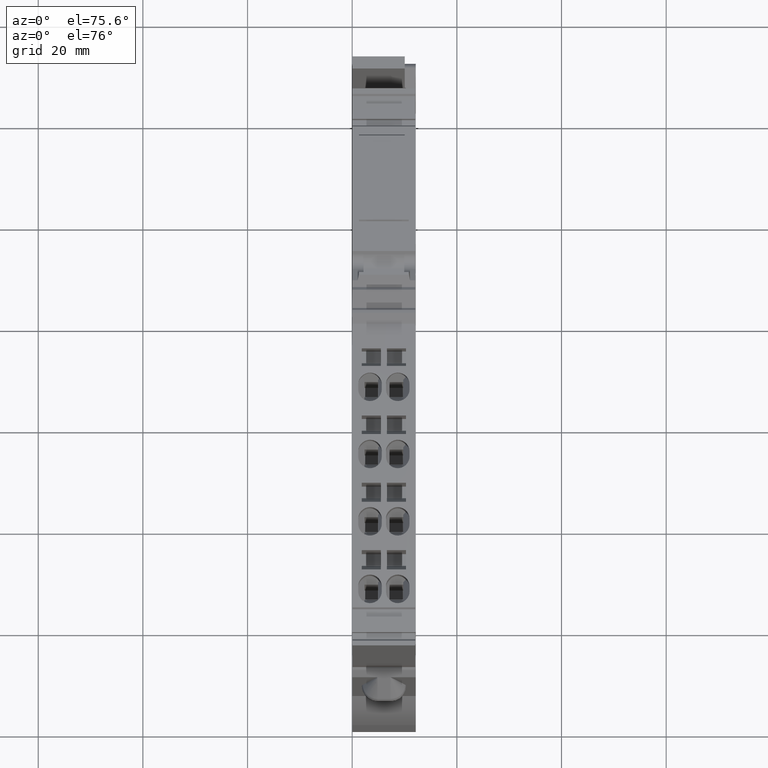
[diagram: clean part render]
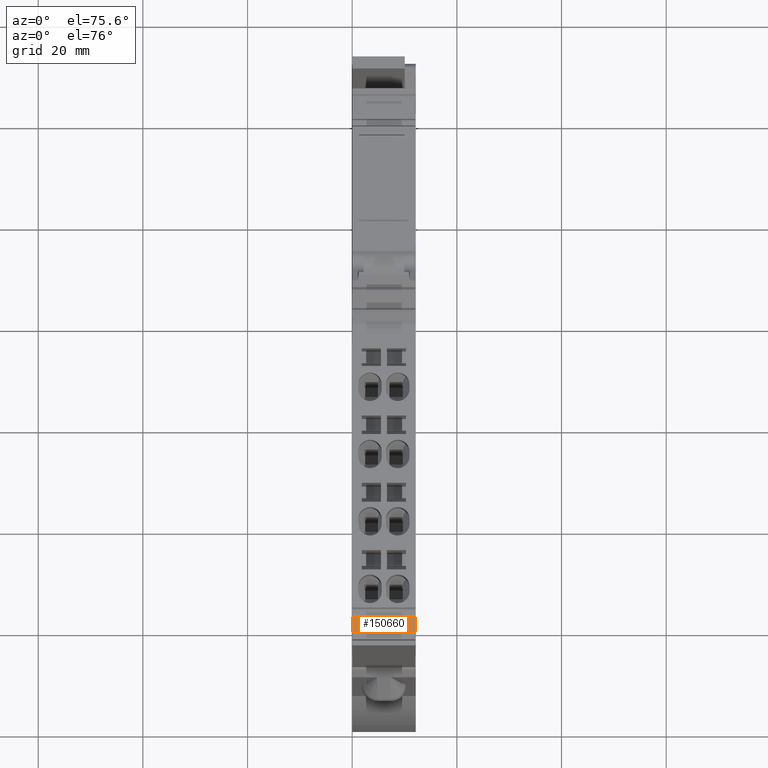
[diagram: same view with one face highlighted and labeled with its STEP entity id]
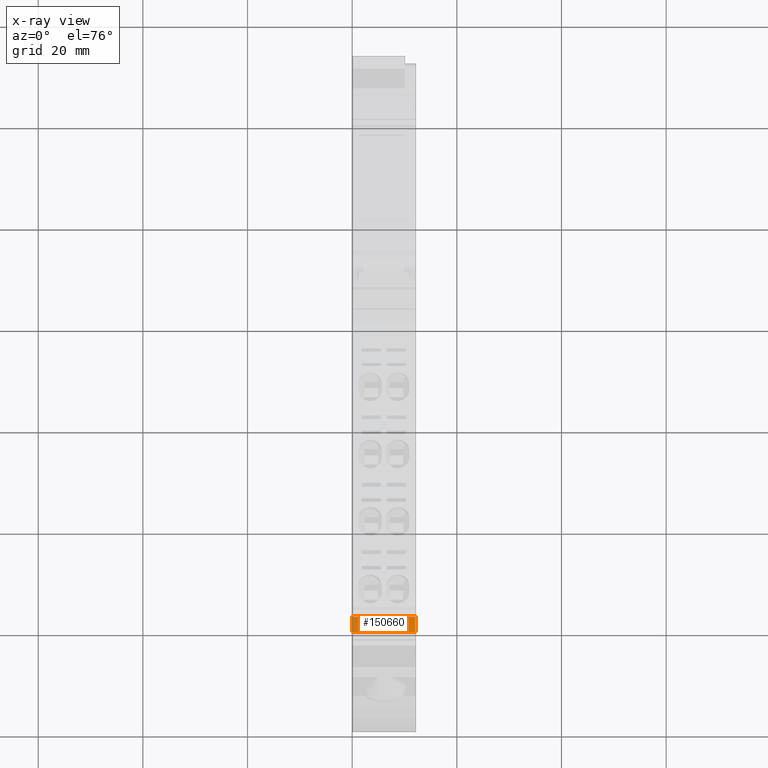
[diagram: x-ray of the same camera — body ghosted, the highlighted face saturated]
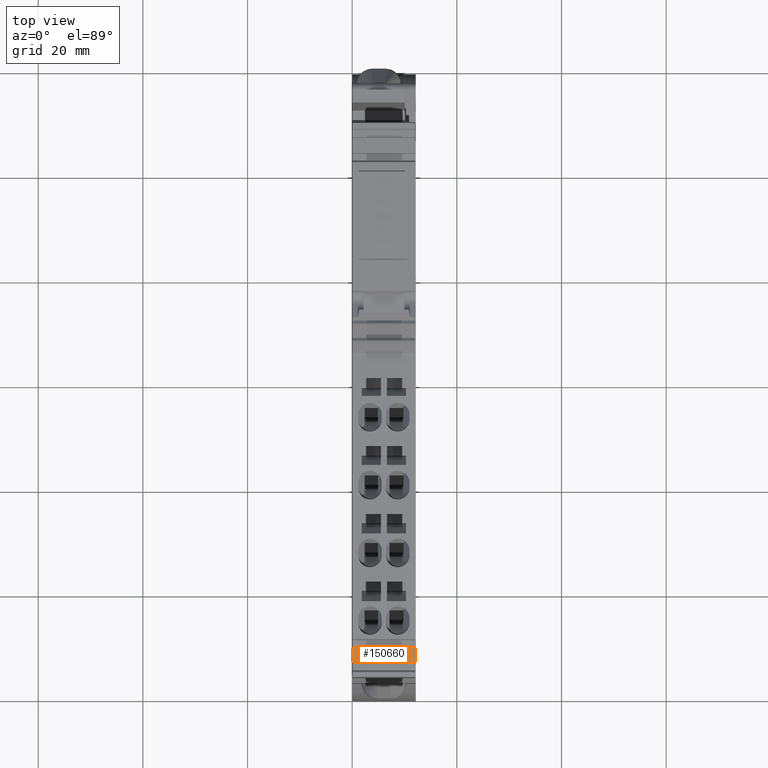
[diagram: same view with one face highlighted and labeled with its STEP entity id]
A machine part, auxiliary view. The second image highlights one B-rep face of the part: STEP entity #150660.
The next image is the same camera in x-ray: the body ghosted, the highlighted face saturated — about 0% of this face is hidden behind the body in this view.
A second angle (top view) of the same face is appended — the face is thin or edge-on in the first view.
In plain terms, the highlighted planar face has unit normal (-0, 0.151, -0.9885).
Its self-contained STEP definition (entity closure, byte-faithful):
#89820=CARTESIAN_POINT('',(15.8953398060877,67.2706587785318,-35.425));
#89830=VERTEX_POINT('',#89820);
#89860=CARTESIAN_POINT('',(71.5932945613604,75.7795747186763,-35.425));
#89870=DIRECTION('',(0.988531191076507,0.151016834388962,
-3.70508301168148E-19));
#89880=VECTOR('',#89870,1.);
#89890=LINE('',#89860,#89880);
#89900=CARTESIAN_POINT('',(18.8609333793172,67.7237092816986,-35.425));
#89910=VERTEX_POINT('',#89900);
#89920=EDGE_CURVE('',#89830,#89910,#89890,.T.);
#93110=CARTESIAN_POINT('',(18.8609333793172,67.7237092816986,-47.425));
#93120=VERTEX_POINT('',#93110);
#93150=CARTESIAN_POINT('',(71.5932945613605,75.7795747186763,-47.425));
#93160=DIRECTION('',(0.988531191076507,0.151016834388962,
-3.70508301168148E-19));
#93170=VECTOR('',#93160,1.);
#93180=LINE('',#93150,#93170);
#93190=CARTESIAN_POINT('',(15.8953398060877,67.2706587785318,-47.425));
#93200=VERTEX_POINT('',#93190);
#93210=EDGE_CURVE('',#93200,#93120,#93180,.T.);
#150450=CARTESIAN_POINT('',(18.7703511846299,67.7098711383834,
-48.6250024));
#150460=DIRECTION('',(0.151016834388962,-0.988531191076507,
1.33790007989884E-33));
#150470=DIRECTION('',(-0.988531191076507,-0.151016834388962,
7.70371977754894E-34));
#150480=AXIS2_PLACEMENT_3D('',#150450,#150460,#150470);
#150490=PLANE('',#150480);
#150500=CARTESIAN_POINT('',(18.8609333793172,67.7237092816986,0.));
#150510=DIRECTION('',(8.85927774418129E-33,0.,-1.));
#150520=VECTOR('',#150510,1.);
#150530=LINE('',#150500,#150520);
#150540=EDGE_CURVE('',#89910,#93120,#150530,.T.);
#150550=ORIENTED_EDGE('',*,*,#150540,.T.);
#150560=ORIENTED_EDGE('',*,*,#89920,.T.);
#150570=CARTESIAN_POINT('',(15.8953398060876,67.2706587785317,0.));
#150580=DIRECTION('',(-8.85927774418128E-33,-6.86841404691554E-49,1.));
#150590=VECTOR('',#150580,1.);
#150600=LINE('',#150570,#150590);
#150610=EDGE_CURVE('',#93200,#89830,#150600,.T.);
#150620=ORIENTED_EDGE('',*,*,#150610,.T.);
#150630=ORIENTED_EDGE('',*,*,#93210,.F.);
#150640=EDGE_LOOP('',(#150630,#150620,#150560,#150550));
#150650=FACE_OUTER_BOUND('',#150640,.T.);
#150660=ADVANCED_FACE('',(#150650),#150490,.F.);